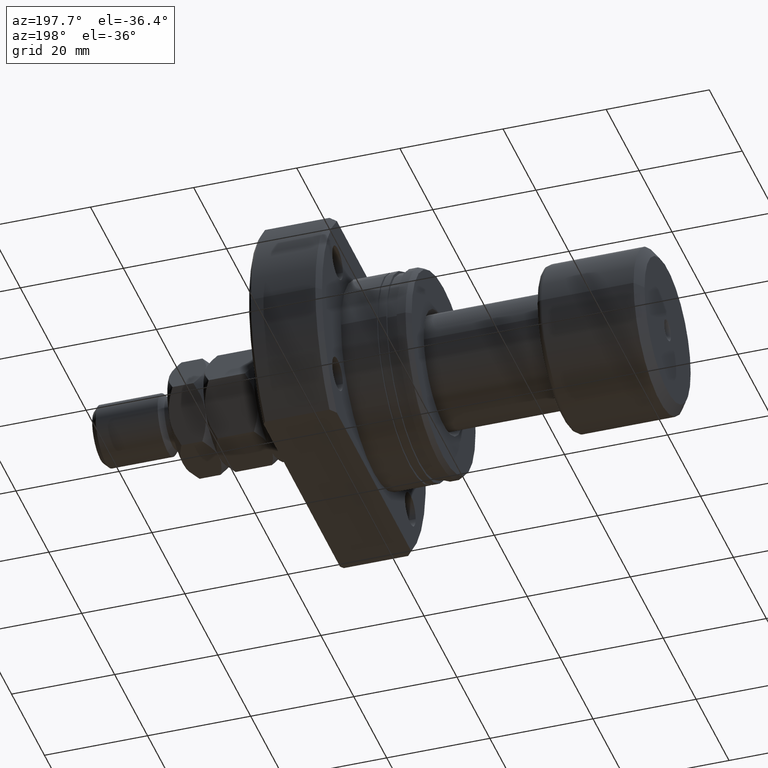
[diagram: clean part render]
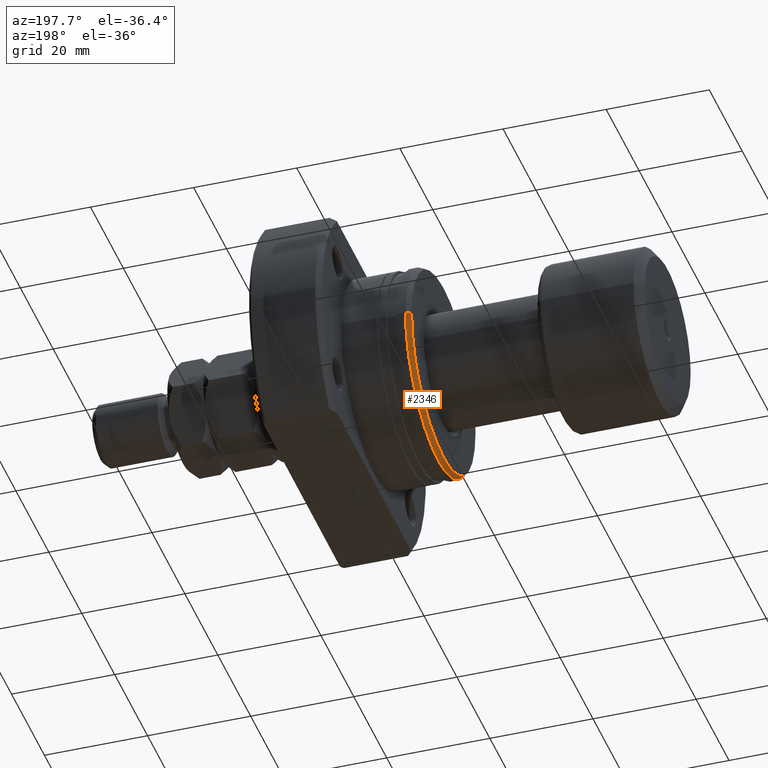
[diagram: same view with one face highlighted and labeled with its STEP entity id]
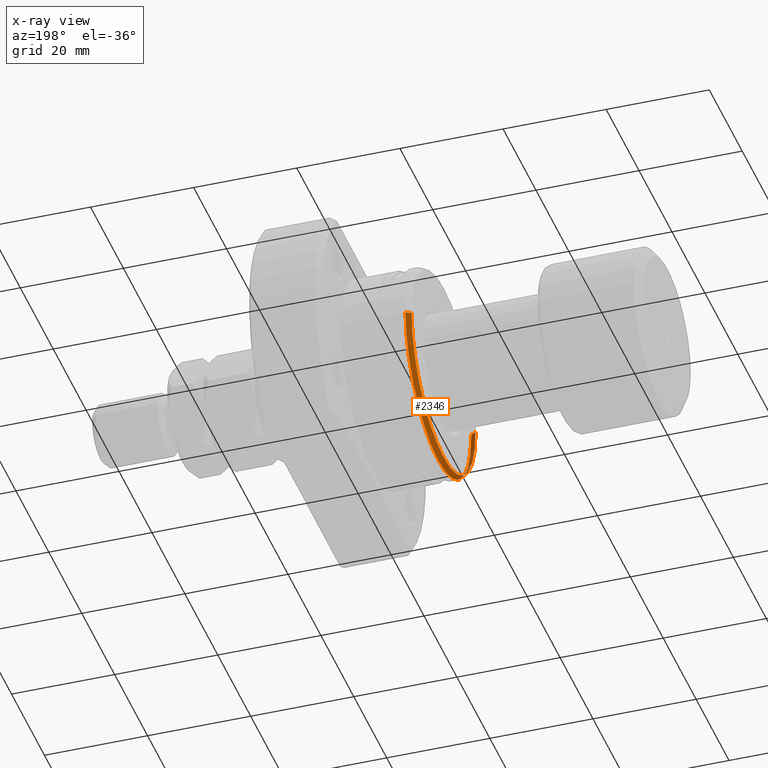
[diagram: x-ray of the same camera — body ghosted, the highlighted face saturated]
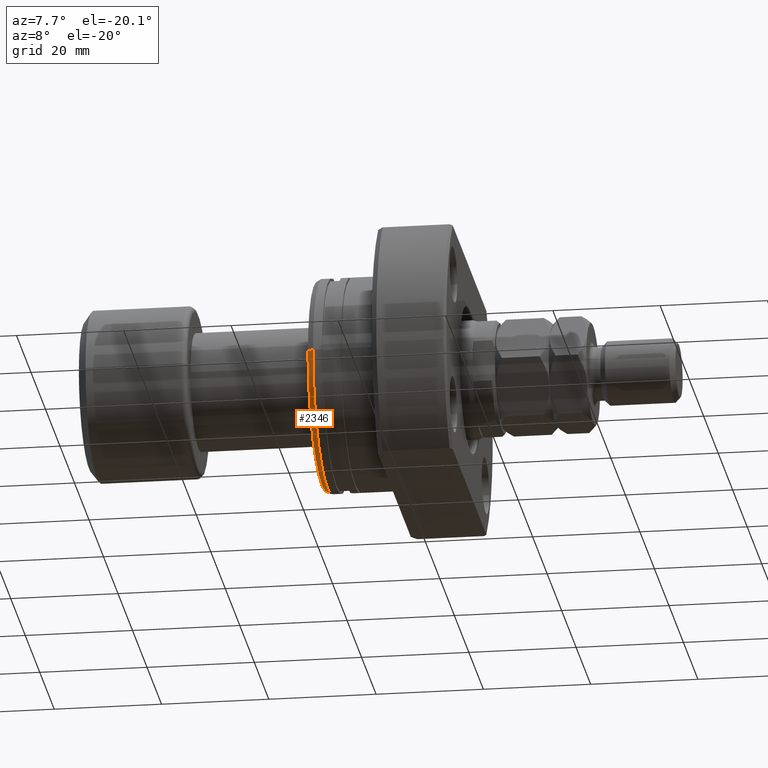
[diagram: same view with one face highlighted and labeled with its STEP entity id]
A machine part, auxiliary view. The second image highlights one B-rep face of the part: STEP entity #2346.
The next image is the same camera in x-ray: the body ghosted, the highlighted face saturated — about 0% of this face is hidden behind the body in this view.
A second angle (auxiliary view) of the same face is appended — the face is thin or edge-on in the first view.
In plain terms, the highlighted conical surface has half-angle 30 deg.
Its self-contained STEP definition (entity closure, byte-faithful):
#39 = CARTESIAN_POINT ( 'NONE',  ( 3.728929342758673161E-15, -19.42264973081037027, 2.378588582379712242E-15 ) ) ;
#146 = EDGE_CURVE ( 'NONE', #928, #315, #3040, .T. ) ;
#315 = VERTEX_POINT ( 'NONE', #2079 ) ;
#338 = CARTESIAN_POINT ( 'NONE',  ( 3.469446951953614189E-15, 4.814824860968089633E-32, 0.000000000000000000 ) ) ;
#347 = CARTESIAN_POINT ( 'NONE',  ( 3.209964561148554822E-15, 19.42264973081037027, 0.000000000000000000 ) ) ;
#482 = CARTESIAN_POINT ( 'NONE',  ( 3.209964561148554822E-15, 19.42264973081037027, 0.000000000000000000 ) ) ;
#528 = DIRECTION ( 'NONE',  ( 0.8660254037843913011, 0.5000000000000819345, 0.000000000000000000 ) ) ;
#609 = DIRECTION ( 'NONE',  ( -1.335978326342566194E-17, 1.000000000000000000, 0.000000000000000000 ) ) ;
#612 = VERTEX_POINT ( 'NONE', #1518 ) ;
#928 = VERTEX_POINT ( 'NONE', #347 ) ;
#1181 = CARTESIAN_POINT ( 'NONE',  ( 0.9999999999997857270, 1.335978326342282389E-17, 0.000000000000000000 ) ) ;
#1292 = AXIS2_PLACEMENT_3D ( 'NONE', #2456, #2846, #609 ) ;
#1300 = EDGE_CURVE ( 'NONE', #612, #928, #3542, .T. ) ;
#1429 = EDGE_LOOP ( 'NONE', ( #3221, #2884, #3685, #2095 ) ) ;
#1509 = DIRECTION ( 'NONE',  ( 0.8660254037843913011, -0.5000000000000819345, 6.123233995737769368E-17 ) ) ;
#1518 = CARTESIAN_POINT ( 'NONE',  ( 3.728929342758673161E-15, -19.42264973081037027, 2.413941090337209377E-15 ) ) ;
#1561 = CARTESIAN_POINT ( 'NONE',  ( 0.9999999999997859490, -19.99999999999999645, 2.449293598294706119E-15 ) ) ;
#2079 = CARTESIAN_POINT ( 'NONE',  ( 0.9999999999997856159, 19.99999999999999645, 0.000000000000000000 ) ) ;
#2095 = ORIENTED_EDGE ( 'NONE', *, *, #3718, .F. ) ;
#2118 = VERTEX_POINT ( 'NONE', #1561 ) ;
#2131 = EDGE_CURVE ( 'NONE', #612, #2118, #2702, .T. ) ;
#2183 = DIRECTION ( 'NONE',  ( 1.000000000000000000, 1.335978326342566810E-17, -0.000000000000000000 ) ) ;
#2323 = AXIS2_PLACEMENT_3D ( 'NONE', #1181, #2183, #2343 ) ;
#2343 = DIRECTION ( 'NONE',  ( -1.084202172485504588E-17, 1.000000000000000000, 0.000000000000000000 ) ) ;
#2346 = ADVANCED_FACE ( 'NONE', ( #4389 ), #3939, .T. ) ;
#2409 = CIRCLE ( 'NONE', #2323, 19.99999999999999645 ) ;
#2456 = CARTESIAN_POINT ( 'NONE',  ( 3.469446951953614189E-15, 4.814824860968089633E-32, 0.000000000000000000 ) ) ;
#2614 = VECTOR ( 'NONE', #1509, 1000.000000000000227 ) ;
#2682 = VECTOR ( 'NONE', #528, 1000.000000000000227 ) ;
#2702 = LINE ( 'NONE', #39, #2614 ) ;
#2846 = DIRECTION ( 'NONE',  ( 1.000000000000000000, 1.335978326342566810E-17, -0.000000000000000000 ) ) ;
#2884 = ORIENTED_EDGE ( 'NONE', *, *, #1300, .T. ) ;
#2943 = DIRECTION ( 'NONE',  ( 1.000000000000000000, 1.335978326342566810E-17, -0.000000000000000000 ) ) ;
#3040 = LINE ( 'NONE', #482, #2682 ) ;
#3175 = AXIS2_PLACEMENT_3D ( 'NONE', #338, #2943, #3289 ) ;
#3221 = ORIENTED_EDGE ( 'NONE', *, *, #2131, .F. ) ;
#3289 = DIRECTION ( 'NONE',  ( -1.335978326342566194E-17, 1.000000000000000000, 0.000000000000000000 ) ) ;
#3542 = CIRCLE ( 'NONE', #1292, 19.42264973081037027 ) ;
#3685 = ORIENTED_EDGE ( 'NONE', *, *, #146, .T. ) ;
#3718 = EDGE_CURVE ( 'NONE', #2118, #315, #2409, .T. ) ;
#3939 = CONICAL_SURFACE ( 'NONE', #3175, 19.42264973081037027, 0.5235987755983935177 ) ;
#4389 = FACE_OUTER_BOUND ( 'NONE', #1429, .T. ) ;